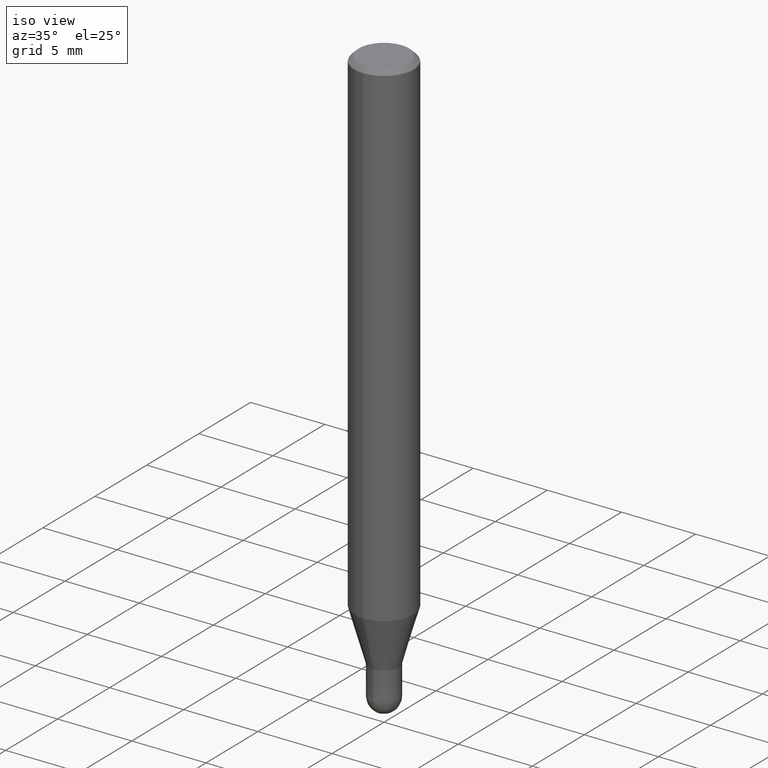
[diagram: clean part render]
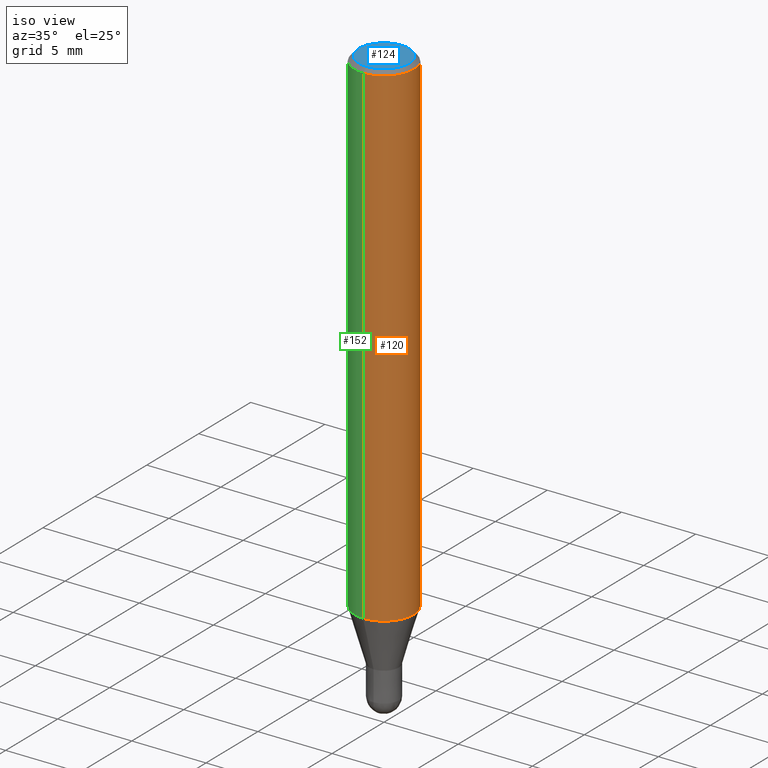
[diagram: same view with three faces highlighted in distinct colors, each labeled with its STEP entity id]
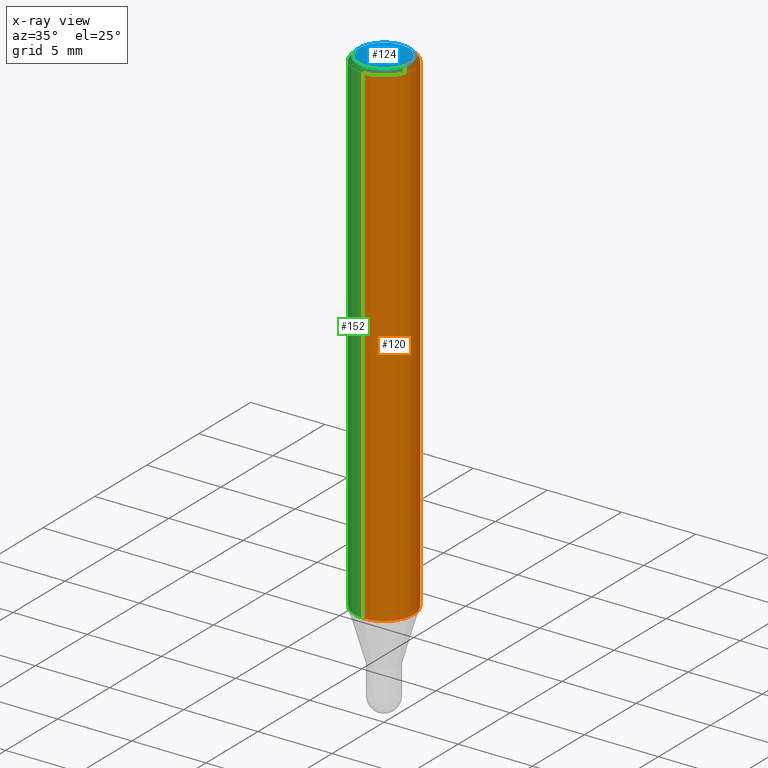
[diagram: x-ray of the same camera — body ghosted, the three highlighted faces saturated]
A machine part, iso view with three faces highlighted in distinct colors.
The next image is the same camera in x-ray (body ghosted, the three faces saturated) — at least one of them is partly hidden behind the body in this view.
Their STEP definitions:

[orange] entity #120 — the highlighted cylindrical surface (edge-blend (fillet) strip) has radius 2 mm, axis along (-0, -0, 1).
#90=EDGE_CURVE('',#176,#130,#215,.T.);
#94=EDGE_CURVE('',#176,#150,#219,.T.);
#96=EDGE_CURVE('',#130,#160,#221,.T.);
#120=ADVANCED_FACE('',(#250),#251,.T.);
#130=VERTEX_POINT('',#262);
#150=VERTEX_POINT('',#283);
#160=VERTEX_POINT('',#294);
#176=VERTEX_POINT('',#314);
#182=EDGE_CURVE('',#160,#150,#320,.T.);
#215=LINE('',#351,#352);
#219=CIRCLE('',#358,2.0);
#221=CIRCLE('',#361,2.0);
#250=FACE_OUTER_BOUND('',#394,.T.);
#251=CYLINDRICAL_SURFACE('',#395,2.0);
#262=CARTESIAN_POINT('',(0.0,2.0,-33.513));
#283=CARTESIAN_POINT('',(2.44921270764475E-016,-2.0,-0.299999999999997));
#294=CARTESIAN_POINT('',(2.44921270764475E-016,-2.0,-33.513));
#314=CARTESIAN_POINT('',(0.0,2.0,-0.299999999999997));
#320=LINE('',#480,#481);
#351=CARTESIAN_POINT('',(-2.44921270764475E-016,2.0,-16.9065));
#352=VECTOR('',#497,1.0);
#358=AXIS2_PLACEMENT_3D('',#501,#502,#503);
#361=AXIS2_PLACEMENT_3D('',#504,#505,#506);
#394=EDGE_LOOP('',(#555,#556,#557,#558));
#395=AXIS2_PLACEMENT_3D('',#559,#560,#561);
#480=CARTESIAN_POINT('',(2.44921270764475E-016,-2.0,-16.9065));
#481=VECTOR('',#637,1.0);
#497=DIRECTION('',(0.0,0.0,-1.0));
#501=CARTESIAN_POINT('',(0.0,0.0,-0.299999999999997));
#502=DIRECTION('',(0.0,0.0,-1.0));
#503=DIRECTION('',(0.0,1.0,0.0));
#504=CARTESIAN_POINT('',(0.0,0.0,-33.513));
#505=DIRECTION('',(0.0,0.0,-1.0));
#506=DIRECTION('',(0.0,1.0,0.0));
#555=ORIENTED_EDGE('',*,*,#90,.F.);
#556=ORIENTED_EDGE('',*,*,#94,.T.);
#557=ORIENTED_EDGE('',*,*,#182,.F.);
#558=ORIENTED_EDGE('',*,*,#96,.F.);
#559=CARTESIAN_POINT('',(0.0,0.0,-16.9065));
#560=DIRECTION('',(-0.0,-0.0,1.0));
#561=DIRECTION('',(0.0,1.0,0.0));
#637=DIRECTION('',(-0.0,-0.0,1.0));

[blue] entity #124 — the highlighted planar face has unit normal (-0, 0, 1).
#92=EDGE_CURVE('',#156,#138,#217,.T.);
#98=EDGE_CURVE('',#138,#156,#223,.T.);
#124=ADVANCED_FACE('',(#255),#256,.T.);
#138=VERTEX_POINT('',#271);
#156=VERTEX_POINT('',#290);
#217=CIRCLE('',#355,1.7);
#223=CIRCLE('',#364,1.7);
#255=FACE_OUTER_BOUND('',#400,.T.);
#256=PLANE('',#401);
#271=CARTESIAN_POINT('',(2.08183080149804E-016,-1.7,0.0));
#290=CARTESIAN_POINT('',(0.0,1.7,0.0));
#355=AXIS2_PLACEMENT_3D('',#498,#499,#500);
#364=AXIS2_PLACEMENT_3D('',#507,#508,#509);
#400=EDGE_LOOP('',(#566,#567));
#401=AXIS2_PLACEMENT_3D('',#568,#569,#570);
#498=CARTESIAN_POINT('',(0.0,0.0,0.0));
#499=DIRECTION('',(0.0,0.0,-1.0));
#500=DIRECTION('',(0.0,1.0,0.0));
#507=CARTESIAN_POINT('',(0.0,0.0,0.0));
#508=DIRECTION('',(0.0,0.0,-1.0));
#509=DIRECTION('',(0.0,1.0,0.0));
#566=ORIENTED_EDGE('',*,*,#92,.F.);
#567=ORIENTED_EDGE('',*,*,#98,.F.);
#568=CARTESIAN_POINT('',(0.0,0.85,0.0));
#569=DIRECTION('',(-0.0,0.0,1.0));
#570=DIRECTION('',(0.0,-1.0,0.0));

[green] entity #152 — the highlighted cylindrical surface (edge-blend (fillet) strip) has radius 2 mm, axis along (-0, -0, 1).
#90=EDGE_CURVE('',#176,#130,#215,.T.);
#130=VERTEX_POINT('',#262);
#142=EDGE_CURVE('',#150,#176,#275,.T.);
#150=VERTEX_POINT('',#283);
#152=ADVANCED_FACE('',(#285),#286,.T.);
#160=VERTEX_POINT('',#294);
#164=EDGE_CURVE('',#160,#130,#298,.T.);
#176=VERTEX_POINT('',#314);
#182=EDGE_CURVE('',#160,#150,#320,.T.);
#215=LINE('',#351,#352);
#262=CARTESIAN_POINT('',(0.0,2.0,-33.513));
#275=CIRCLE('',#427,2.0);
#283=CARTESIAN_POINT('',(2.44921270764475E-016,-2.0,-0.299999999999997));
#285=FACE_OUTER_BOUND('',#439,.T.);
#286=CYLINDRICAL_SURFACE('',#440,2.0);
#294=CARTESIAN_POINT('',(2.44921270764475E-016,-2.0,-33.513));
#298=CIRCLE('',#455,2.0);
#314=CARTESIAN_POINT('',(0.0,2.0,-0.299999999999997));
#320=LINE('',#480,#481);
#351=CARTESIAN_POINT('',(-2.44921270764475E-016,2.0,-16.9065));
#352=VECTOR('',#497,1.0);
#427=AXIS2_PLACEMENT_3D('',#585,#586,#587);
#439=EDGE_LOOP('',(#595,#596,#597,#598));
#440=AXIS2_PLACEMENT_3D('',#599,#600,#601);
#455=AXIS2_PLACEMENT_3D('',#603,#604,#605);
#480=CARTESIAN_POINT('',(2.44921270764475E-016,-2.0,-16.9065));
#481=VECTOR('',#637,1.0);
#497=DIRECTION('',(0.0,0.0,-1.0));
#585=CARTESIAN_POINT('',(0.0,0.0,-0.299999999999997));
#586=DIRECTION('',(0.0,0.0,-1.0));
#587=DIRECTION('',(0.0,1.0,0.0));
#595=ORIENTED_EDGE('',*,*,#90,.T.);
#596=ORIENTED_EDGE('',*,*,#164,.F.);
#597=ORIENTED_EDGE('',*,*,#182,.T.);
#598=ORIENTED_EDGE('',*,*,#142,.T.);
#599=CARTESIAN_POINT('',(0.0,0.0,-16.9065));
#600=DIRECTION('',(-0.0,-0.0,1.0));
#601=DIRECTION('',(0.0,1.0,0.0));
#603=CARTESIAN_POINT('',(0.0,0.0,-33.513));
#604=DIRECTION('',(0.0,0.0,-1.0));
#605=DIRECTION('',(0.0,1.0,0.0));
#637=DIRECTION('',(-0.0,-0.0,1.0));